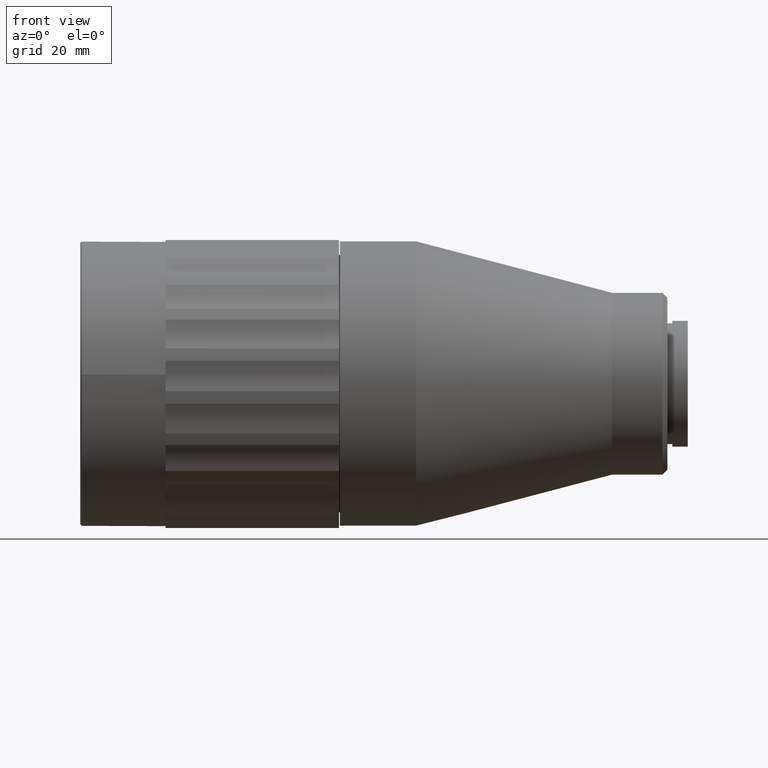
[diagram: clean part render]
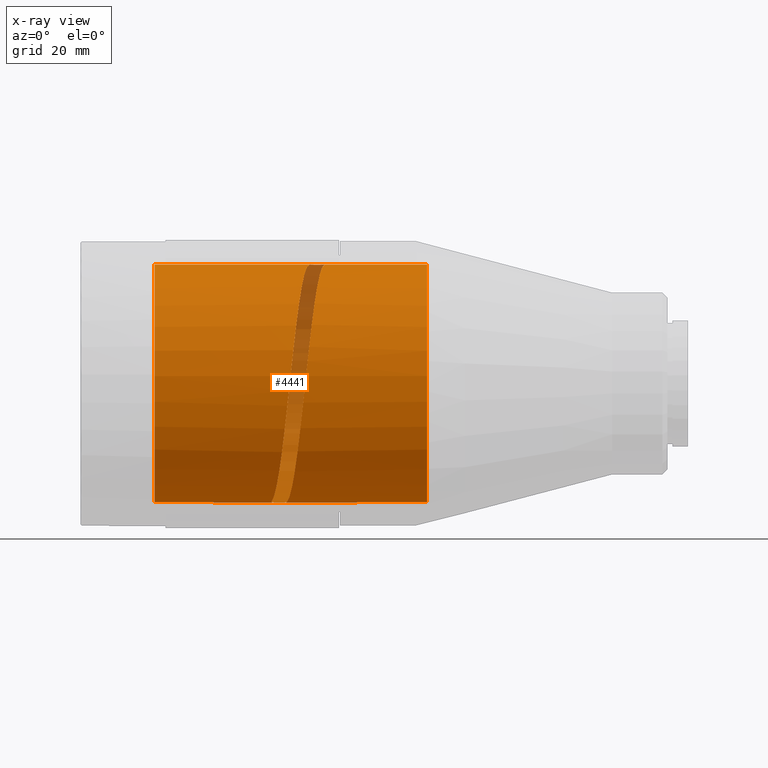
[diagram: x-ray — body ghosted, one internal face saturated and labeled with its STEP entity id]
A machine part, front view, then the same camera in x-ray: the body is ghosted and one INTERNAL B-rep face — a face not visible from any outside direction — is saturated and labeled: STEP entity #4441.
In plain terms, the highlighted cylindrical surface (bore or boss wall) has radius 24.05 mm, axis along (-1, 0, -0).
Its self-contained STEP definition (entity closure, byte-faithful):
#85 = ORIENTED_EDGE ( 'NONE', *, *, #4489, .T. ) ;
#125 = CARTESIAN_POINT ( 'NONE',  ( -12.45117802004431340, 7.643310340197927211, 153.0469465429056868 ) ) ;
#138 = CARTESIAN_POINT ( 'NONE',  ( -21.22889073531764836, 5.681678415940095483, 105.0009269404879433 ) ) ;
#199 = VERTEX_POINT ( 'NONE', #3057 ) ;
#213 = B_SPLINE_CURVE_WITH_KNOTS ( 'NONE', 3,
 ( #354, #3565, #1753, #3215, #3638, #1375, #3988, #4302 ),
 .UNSPECIFIED., .F., .F.,
 ( 4, 2, 2, 4 ),
 ( 7.152448122690996019E-18, 0.0005468489758778457156, 0.001093697951755684275, 0.002187395903511361612 ),
 .UNSPECIFIED. ) ;
#280 = CARTESIAN_POINT ( 'NONE',  ( -23.16925163210535032, 4.064795420791781133, 105.1615056189385626 ) ) ;
#290 = DIRECTION ( 'NONE',  ( 0.000000000000000000, -0.9979688372028781007, 0.06370400279366535135 ) ) ;
#291 = CARTESIAN_POINT ( 'NONE',  ( -15.48542824350433023, 7.437161010694372187, 153.0492510005691713 ) ) ;
#317 = CARTESIAN_POINT ( 'NONE',  ( -21.12179982525748301, -12.42222087995487101, 114.5261092358267376 ) ) ;
#351 = LINE ( 'NONE', #3636, #3083 ) ;
#354 = CARTESIAN_POINT ( 'NONE',  ( -13.99346125450547085, 8.779436293721767370, 153.0011505347292484 ) ) ;
#390 = CIRCLE ( 'NONE', #2210, 24.05000000000000071 ) ;
#399 = CARTESIAN_POINT ( 'NONE',  ( -14.02179982525748869, -7.006644814275500011, 148.3707508511724882 ) ) ;
#417 = CARTESIAN_POINT ( 'NONE',  ( -23.16925163210535032, 4.064795420791781133, 105.1615056189385626 ) ) ;
#419 = AXIS2_PLACEMENT_3D ( 'NONE', #1108, #1083, #3305 ) ;
#427 = LINE ( 'NONE', #4479, #3644 ) ;
#441 = CARTESIAN_POINT ( 'NONE',  ( -13.99346125450547085, 8.779436293721767370, 153.0011505347292484 ) ) ;
#451 = ORIENTED_EDGE ( 'NONE', *, *, #4417, .T. ) ;
#473 = CARTESIAN_POINT ( 'NONE',  ( -12.93417311057738850, 8.438042594549443720, 153.0210080709435942 ) ) ;
#545 = ORIENTED_EDGE ( 'NONE', *, *, #3219, .T. ) ;
#588 = CARTESIAN_POINT ( 'NONE',  ( -22.01068871414637229, -6.285638113139263794, 108.6716004841525773 ) ) ;
#606 = CARTESIAN_POINT ( 'NONE',  ( -12.41879246285407312, 7.121672294526777414, 153.0496715954890874 ) ) ;
#631 = CARTESIAN_POINT ( 'NONE',  ( -18.01068871414637940, -12.77221042300202924, 142.3273965654113908 ) ) ;
#661 = DIRECTION ( 'NONE',  ( 1.000000000000000000, -0.000000000000000000, 0.000000000000000000 ) ) ;
#663 = CARTESIAN_POINT ( 'NONE',  ( -14.91068871414637975, -12.77221042300202924, 142.3273965654113908 ) ) ;
#672 = CARTESIAN_POINT ( 'NONE',  ( -21.56624426970193298, -9.353929496547067401, 111.5988548599896717 ) ) ;
#684 = CARTESIAN_POINT ( 'NONE',  ( -17.13291093636858875, -16.18636250042449731, 122.1263828255375472 ) ) ;
#729 = FACE_OUTER_BOUND ( 'NONE', #1094, .T. ) ;
#751 = EDGE_CURVE ( 'NONE', #1937, #199, #2161, .T. ) ;
#755 = CARTESIAN_POINT ( 'NONE',  ( -14.46624426970192623, -10.42223082591867644, 145.8573860962235642 ) ) ;
#792 = CARTESIAN_POINT ( 'NONE',  ( -21.59458284045394194, 5.715273759346461979, 104.9988494652707800 ) ) ;
#813 = EDGE_LOOP ( 'NONE', ( #4127, #451, #85, #4345, #2190, #545, #3674, #3106 ) ) ;
#899 = CARTESIAN_POINT ( 'NONE',  ( -13.49598468516959571, 8.725023387618263015, 153.0045718200761939 ) ) ;
#952 = CARTESIAN_POINT ( 'NONE',  ( -13.10795893928480638, 8.564470306173394221, 153.0140577940281617 ) ) ;
#1014 = CARTESIAN_POINT ( 'NONE',  ( -21.67791872972753353, 5.715273759346461979, 104.9988494652707800 ) ) ;
#1018 = CARTESIAN_POINT ( 'NONE',  ( -23.13686607491509761, 4.582546131766546793, 105.0978826837004050 ) ) ;
#1040 = CARTESIAN_POINT ( 'NONE',  ( -13.57735538081304050, -3.591058802632328906, 150.8841156061213553 ) ) ;
#1071 = DIRECTION ( 'NONE',  ( -1.000000000000000000, 0.000000000000000000, -0.000000000000000000 ) ) ;
#1083 = DIRECTION ( 'NONE',  ( -1.000000000000000000, 0.000000000000000000, -0.000000000000000000 ) ) ;
#1084 = CARTESIAN_POINT ( 'NONE',  ( -20.10261585145507723, 4.377776982676845563, 105.1218086562191161 ) ) ;
#1094 = EDGE_LOOP ( 'NONE', ( #4566 ) ) ;
#1108 = CARTESIAN_POINT ( 'NONE',  ( -86.60483285829053557, 7.247355026534116895, 129.0000000000000000 ) ) ;
#1109 = CARTESIAN_POINT ( 'NONE',  ( -15.79957760303526193, -16.12312098119554449, 134.6765615624365751 ) ) ;
#1303 = CARTESIAN_POINT ( 'NONE',  ( -12.40765896125409817, 7.226872800097692284, 153.0502213696053673 ) ) ;
#1311 = EDGE_CURVE ( 'NONE', #2617, #3689, #427, .T. ) ;
#1320 = CARTESIAN_POINT ( 'NONE',  ( -18.45513315859081160, -15.12219002008538027, 138.7974070345991606 ) ) ;
#1345 = EDGE_LOOP ( 'NONE', ( #1939 ) ) ;
#1375 = CARTESIAN_POINT ( 'NONE',  ( -15.26963457875718966, 8.149785763549488138, 153.0343158633506846 ) ) ;
#1388 = CARTESIAN_POINT ( 'NONE',  ( -19.34402204747970444, -17.12405194230571226, 130.5557160902739611 ) ) ;
#1437 = CARTESIAN_POINT ( 'NONE',  ( -21.78371103790725982, 5.715273759346458426, 104.9988494652707942 ) ) ;
#1465 = CARTESIAN_POINT ( 'NONE',  ( -19.72733282944897937, 0.8518062597573062833, 105.5455446094201335 ) ) ;
#1563 = CARTESIAN_POINT ( 'NONE',  ( -12.65529294700038676, 8.128068414409273856, 153.0343693397055915 ) ) ;
#1576 = CARTESIAN_POINT ( 'NONE',  ( -20.88519507843930256, 5.550058629107187613, 105.0098762841030293 ) ) ;
#1587 = CARTESIAN_POINT ( 'NONE',  ( 8.205977952520301599, -16.75379550819510754, 130.5320812671876638 ) ) ;
#1610 = CIRCLE ( 'NONE', #2134, 24.05000000000000071 ) ;
#1741 = DIRECTION ( 'NONE',  ( -1.000000000000000000, 0.000000000000000000, -0.000000000000000000 ) ) ;
#1753 = CARTESIAN_POINT ( 'NONE',  ( -14.35915335964176620, 8.745849474206998764, 153.0033615428142468 ) ) ;
#1773 = CARTESIAN_POINT ( 'NONE',  ( -22.48008515567461529, 5.500411373785670577, 105.0133797239188880 ) ) ;
#1819 = CARTESIAN_POINT ( 'NONE',  ( -16.68846649192415299, -16.65520722136509946, 126.3410494579057826 ) ) ;
#1845 = CARTESIAN_POINT ( 'NONE',  ( -22.65387098438204205, 5.374126077750314145, 105.0225610430471193 ) ) ;
#1846 = CARTESIAN_POINT ( 'NONE',  ( -12.77758824598177512, 3.731409362167257271, 153.0319542014752017 ) ) ;
#1937 = VERTEX_POINT ( 'NONE', #606 ) ;
#1939 = ORIENTED_EDGE ( 'NONE', *, *, #2924, .F. ) ;
#1998 = CARTESIAN_POINT ( 'NONE',  ( -23.04014503854572382, 4.879618181762565676, 105.0660075034476080 ) ) ;
#2020 = CARTESIAN_POINT ( 'NONE',  ( -13.70037342394596891, 8.768392309294954501, 153.0018627951039889 ) ) ;
#2029 = EDGE_CURVE ( 'NONE', #2617, #3085, #213, .T. ) ;
#2053 = CARTESIAN_POINT ( 'NONE',  ( -19.78846649192415441, -16.65520722136509946, 126.3410494579057826 ) ) ;
#2079 = CARTESIAN_POINT ( 'NONE',  ( -17.12179982525748656, -7.006644814275500011, 148.3707508511724882 ) ) ;
#2099 = CARTESIAN_POINT ( 'NONE',  ( -46.79402204747971439, 7.247355026534116895, 129.0000000000000000 ) ) ;
#2111 = CARTESIAN_POINT ( 'NONE',  ( -15.35513315859081906, -15.12219002008538027, 138.7974070345991606 ) ) ;
#2121 = CARTESIAN_POINT ( 'NONE',  ( -20.23291093636859728, -16.18636250042449731, 122.1263828255375472 ) ) ;
#2134 = AXIS2_PLACEMENT_3D ( 'NONE', #2099, #1741, #290 ) ;
#2161 =( BOUNDED_CURVE ( )  B_SPLINE_CURVE ( 2, ( #2182, #1846, #3938, #1040, #399, #755, #663, #2111, #1109, #4700, #1819, #684, #4321, #4011, #2500, #3564, #3659, #1465, #1084 ),
 .UNSPECIFIED., .F., .T. ) 
 B_SPLINE_CURVE_WITH_KNOTS ( ( 3, 2, 2, 2, 2, 2, 2, 2, 2, 3 ),
 ( 0.01100449850159282948, 0.05555555555555555247, 0.1111111111111111049, 0.1666666666666666574, 0.2222222222222222099, 0.2777777777777777901, 0.3333333333333333148, 0.3888888888888888951, 0.4444444444444444198, 0.4910845816334876157 ),
 .UNSPECIFIED. ) 
 CURVE ( )  GEOMETRIC_REPRESENTATION_ITEM ( )  RATIONAL_B_SPLINE_CURVE ( ( 0.9951735780578738755, 0.9878170480780417151, 1.000000000000000000, 0.9848077530122079093, 1.000000000000000000, 0.9848077530122079093, 1.000000000000000000, 0.9848077530122079093, 1.000000000000000000, 0.9848077530122079093, 1.000000000000000000, 0.9848077530122079093, 1.000000000000000000, 0.9848077530122079093, 1.000000000000000000, 0.9848077530122079093, 1.000000000000000000, 0.9872457672930319283, 0.9959064644610468031 ) ) 
 REPRESENTATION_ITEM ( '' )  );
#2182 = CARTESIAN_POINT ( 'NONE',  ( -12.41879246285407312, 7.121672294526777414, 153.0496715954890874 ) ) ;
#2190 = ORIENTED_EDGE ( 'NONE', *, *, #751, .F. ) ;
#2201 = CARTESIAN_POINT ( 'NONE',  ( -22.19349296089744783, 5.627952891631354149, 105.0045451632152407 ) ) ;
#2210 = AXIS2_PLACEMENT_3D ( 'NONE', #2914, #1071, #4019 ) ;
#2346 = CARTESIAN_POINT ( 'NONE',  ( -20.72734747378760645, 5.453443746524534674, 105.0166841870632624 ) ) ;
#2401 = VERTEX_POINT ( 'NONE', #1014 ) ;
#2498 = CARTESIAN_POINT ( 'NONE',  ( -21.88767067101344566, 5.704228848963715848, 104.9995472198826718 ) ) ;
#2500 = CARTESIAN_POINT ( 'NONE',  ( -18.46624426970193156, -9.353929496547067401, 111.5988548599896717 ) ) ;
#2567 = FACE_BOUND ( 'NONE', #813, .T. ) ;
#2617 = VERTEX_POINT ( 'NONE', #441 ) ;
#2638 = DIRECTION ( 'NONE',  ( 1.000000000000000000, -0.000000000000000000, 0.000000000000000000 ) ) ;
#2673 = CARTESIAN_POINT ( 'NONE',  ( -15.48542824350433023, 7.437161010694372187, 153.0492510005691713 ) ) ;
#2683 = EDGE_CURVE ( 'NONE', #3945, #199, #4299, .T. ) ;
#2690 = CARTESIAN_POINT ( 'NONE',  ( -12.41879246285407312, 7.121672294526777414, 153.0496715954890874 ) ) ;
#2739 = EDGE_CURVE ( 'NONE', #4702, #4702, #1610, .T. ) ;
#2753 = CARTESIAN_POINT ( 'NONE',  ( -22.45513315859082226, -2.401207380555486104, 106.9702986067332944 ) ) ;
#2898 = FACE_OUTER_BOUND ( 'NONE', #1345, .T. ) ;
#2914 = CARTESIAN_POINT ( 'NONE',  ( 8.205977952520301599, 7.247355026534116895, 129.0000000000000000 ) ) ;
#2924 = EDGE_CURVE ( 'NONE', #4460, #4460, #390, .T. ) ;
#3023 = CARTESIAN_POINT ( 'NONE',  ( -13.39455113406196851, 8.692099953546115643, 153.0066038454958459 ) ) ;
#3039 = CARTESIAN_POINT ( 'NONE',  ( -20.31840951620223379, 5.086516779063662952, 105.0460128929923513 ) ) ;
#3057 = CARTESIAN_POINT ( 'NONE',  ( -20.10261585145507723, 4.377776982676845563, 105.1218086562191161 ) ) ;
#3083 = VECTOR ( 'NONE', #661, 1000.000000000000000 ) ;
#3085 = VERTEX_POINT ( 'NONE', #2673 ) ;
#3093 = CARTESIAN_POINT ( 'NONE',  ( -20.10261585145507723, 4.377776982676845563, 105.1218086562191161 ) ) ;
#3101 = CARTESIAN_POINT ( 'NONE',  ( -12.42918939842945214, 7.539008660221838909, 153.0484556113414669 ) ) ;
#3106 = ORIENTED_EDGE ( 'NONE', *, *, #2029, .T. ) ;
#3123 = CARTESIAN_POINT ( 'NONE',  ( -12.54789905641369430, 7.942024138904600683, 153.0407905322481383 ) ) ;
#3159 = CARTESIAN_POINT ( 'NONE',  ( -15.86071126551043342, 3.885930780761746917, 153.0772786821279396 ) ) ;
#3201 = CARTESIAN_POINT ( 'NONE',  ( -23.16925163210535032, 4.064795420791781133, 105.1615056189385626 ) ) ;
#3215 = CARTESIAN_POINT ( 'NONE',  ( -14.70284901652010667, 8.614160064151660023, 153.0112201887763490 ) ) ;
#3219 = EDGE_CURVE ( 'NONE', #1937, #3689, #4189, .T. ) ;
#3305 = DIRECTION ( 'NONE',  ( 0.000000000000000000, -0.9979688372028781007, 0.06370400279366535135 ) ) ;
#3378 = CARTESIAN_POINT ( 'NONE',  ( -46.79402204747971439, -16.75379550819510754, 130.5320812671876638 ) ) ;
#3476 = CARTESIAN_POINT ( 'NONE',  ( -13.91012536523188103, 8.779436293721767370, 153.0011505347292484 ) ) ;
#3479 = CARTESIAN_POINT ( 'NONE',  ( -23.15885469652996420, 4.478899129066650886, 105.1096477406363618 ) ) ;
#3510 = CARTESIAN_POINT ( 'NONE',  ( -18.89957760303526513, -16.12312098119554449, 134.6765615624365751 ) ) ;
#3535 = CARTESIAN_POINT ( 'NONE',  ( -16.23291093636859728, 0.4781635418856381436, 152.0777067024469034 ) ) ;
#3553 = CARTESIAN_POINT ( 'NONE',  ( -17.56624426970192943, -10.42223082591867644, 145.8573860962235642 ) ) ;
#3564 = CARTESIAN_POINT ( 'NONE',  ( -18.91068871414637442, -6.285638113139263794, 108.6716004841525773 ) ) ;
#3565 = CARTESIAN_POINT ( 'NONE',  ( -14.17836867458820649, 8.779436293721770923, 153.0011505347292768 ) ) ;
#3574 = CARTESIAN_POINT ( 'NONE',  ( -16.67735538081303659, -3.591058802632328906, 150.8841156061213553 ) ) ;
#3636 = CARTESIAN_POINT ( 'NONE',  ( -86.60483285829053557, 5.715273759346461979, 104.9988494652707800 ) ) ;
#3638 = CARTESIAN_POINT ( 'NONE',  ( -14.86069662117181345, 8.517463727050893496, 153.0167520483615249 ) ) ;
#3644 = VECTOR ( 'NONE', #2638, 1000.000000000000000 ) ;
#3659 = CARTESIAN_POINT ( 'NONE',  ( -19.35513315859081729, -2.401207380555486104, 106.9702986067332944 ) ) ;
#3674 = ORIENTED_EDGE ( 'NONE', *, *, #1311, .F. ) ;
#3689 = VERTEX_POINT ( 'NONE', #3781 ) ;
#3753 = CARTESIAN_POINT ( 'NONE',  ( -21.40967542037121163, 5.715273759346461979, 104.9988494652707942 ) ) ;
#3781 = CARTESIAN_POINT ( 'NONE',  ( -13.91012536523188103, 8.779436293721767370, 153.0011505347292484 ) ) ;
#3791 = CARTESIAN_POINT ( 'NONE',  ( -12.40767620892328615, 7.331369789170496531, 153.0500773523156113 ) ) ;
#3853 = EDGE_CURVE ( 'NONE', #4034, #3085, #4613, .T. ) ;
#3876 = CARTESIAN_POINT ( 'NONE',  ( -20.67735538081304369, -14.30429169018968061, 118.3262460306821566 ) ) ;
#3935 = CARTESIAN_POINT ( 'NONE',  ( -23.18036788603613729, 4.272739335038074238, 105.1344402826874926 ) ) ;
#3938 = CARTESIAN_POINT ( 'NONE',  ( -13.13291093636860474, 0.4781635418856381436, 152.0777067024469034 ) ) ;
#3945 = VERTEX_POINT ( 'NONE', #792 ) ;
#3950 = CARTESIAN_POINT ( 'NONE',  ( -22.81045584897763590, 0.7043019711210488643, 105.6101484961825605 ) ) ;
#3988 = CARTESIAN_POINT ( 'NONE',  ( -15.44656508988183674, 7.804915473011814875, 153.0463485402119659 ) ) ;
#4011 = CARTESIAN_POINT ( 'NONE',  ( -18.02179982525748159, -12.42222087995487101, 114.5261092358267376 ) ) ;
#4019 = DIRECTION ( 'NONE',  ( 0.000000000000000000, -0.9979688372028781007, 0.06370400279366535135 ) ) ;
#4034 = VERTEX_POINT ( 'NONE', #417 ) ;
#4127 = ORIENTED_EDGE ( 'NONE', *, *, #3853, .F. ) ;
#4156 = CARTESIAN_POINT ( 'NONE',  ( -13.80433305705214941, 8.779436293721765594, 153.0011505347292484 ) ) ;
#4189 = B_SPLINE_CURVE_WITH_KNOTS ( 'NONE', 3,
 ( #2690, #1303, #3791, #3101, #125, #3123, #1563, #473, #952, #3023, #899, #2020, #4156, #3476 ),
 .UNSPECIFIED., .F., .F.,
 ( 4, 2, 2, 2, 2, 2, 4 ),
 ( 2.602085213965210642E-18, 0.0003128765100130129055, 0.0006257530200260232088, 0.001251506040052039696, 0.001877259060078056291, 0.002190135570091065673, 0.002503012080104074621 ),
 .UNSPECIFIED. ) ;
#4297 = CARTESIAN_POINT ( 'NONE',  ( -23.18038513370531817, 4.169072173635566259, 105.1475841448675084 ) ) ;
#4299 = B_SPLINE_CURVE_WITH_KNOTS ( 'NONE', 3,
 ( #4472, #3753, #138, #1576, #2346, #3039, #4497, #3093 ),
 .UNSPECIFIED., .F., .F.,
 ( 4, 2, 2, 4 ),
 ( 6.992893892674702526E-18, 0.0005468489758778450650, 0.001093697951755683191, 0.002187395903511359443 ),
 .UNSPECIFIED. ) ;
#4302 = CARTESIAN_POINT ( 'NONE',  ( -15.48542824350433023, 7.437161010694372187, 153.0492510005691713 ) ) ;
#4321 = CARTESIAN_POINT ( 'NONE',  ( -17.57735538081304227, -14.30429169018968061, 118.3262460306821566 ) ) ;
#4345 = ORIENTED_EDGE ( 'NONE', *, *, #2683, .T. ) ;
#4363 = CYLINDRICAL_SURFACE ( 'NONE', #419, 24.05000000000000071 ) ;
#4388 = CARTESIAN_POINT ( 'NONE',  ( -21.67791872972753353, 5.715273759346461979, 104.9988494652707800 ) ) ;
#4417 = EDGE_CURVE ( 'NONE', #4034, #2401, #4499, .T. ) ;
#4441 = ADVANCED_FACE ( 'NONE', ( #729, #2898, #2567 ), #4363, .F. ) ;
#4460 = VERTEX_POINT ( 'NONE', #1587 ) ;
#4472 = CARTESIAN_POINT ( 'NONE',  ( -21.59458284045394194, 5.715273759346461979, 104.9988494652707800 ) ) ;
#4479 = CARTESIAN_POINT ( 'NONE',  ( -86.60483285829053557, 8.779436293721767370, 153.0011505347292484 ) ) ;
#4489 = EDGE_CURVE ( 'NONE', #2401, #3945, #351, .T. ) ;
#4497 = CARTESIAN_POINT ( 'NONE',  ( -20.14147900507756361, 4.742915648265115358, 105.0779278663112990 ) ) ;
#4499 = B_SPLINE_CURVE_WITH_KNOTS ( 'NONE', 3,
 ( #280, #4297, #3935, #3479, #1018, #1998, #4561, #1845, #1773, #2201, #4698, #2498, #1437, #4388 ),
 .UNSPECIFIED., .F., .F.,
 ( 4, 2, 2, 2, 2, 2, 4 ),
 ( 0.000000000000000000, 0.0003128765100130073218, 0.0006257530200260146436, 0.001251506040052036009, 0.001877259060078057158, 0.002190135570091067841, 0.002503012080104078524 ),
 .UNSPECIFIED. ) ;
#4561 = CARTESIAN_POINT ( 'NONE',  ( -22.93275114795903846, 5.064968897138014015, 105.0487211946588815 ) ) ;
#4566 = ORIENTED_EDGE ( 'NONE', *, *, #2739, .T. ) ;
#4613 =( BOUNDED_CURVE ( )  B_SPLINE_CURVE ( 2, ( #3201, #3950, #2753, #588, #672, #317, #3876, #2121, #2053, #1388, #3510, #1320, #631, #3553, #2079, #3574, #3535, #3159, #291 ),
 .UNSPECIFIED., .F., .T. ) 
 B_SPLINE_CURVE_WITH_KNOTS ( ( 3, 2, 2, 2, 2, 2, 2, 2, 2, 3 ),
 ( 0.01100449850159281040, 0.05555555555555558023, 0.1111111111111111049, 0.1666666666666666852, 0.2222222222222222099, 0.2777777777777777901, 0.3333333333333333703, 0.3888888888888888951, 0.4444444444444444198, 0.4910845816334875602 ),
 .UNSPECIFIED. ) 
 CURVE ( )  GEOMETRIC_REPRESENTATION_ITEM ( )  RATIONAL_B_SPLINE_CURVE ( ( 0.9951735780578738755, 0.9878170480780414930, 1.000000000000000000, 0.9848077530122079093, 1.000000000000000000, 0.9848077530122079093, 1.000000000000000000, 0.9848077530122079093, 1.000000000000000000, 0.9848077530122079093, 1.000000000000000000, 0.9848077530122079093, 1.000000000000000000, 0.9848077530122079093, 1.000000000000000000, 0.9848077530122079093, 1.000000000000000000, 0.9872457672930319283, 0.9959064644610468031 ) ) 
 REPRESENTATION_ITEM ( '' )  );
#4698 = CARTESIAN_POINT ( 'NONE',  ( -22.09205940978981886, 5.660867476390515129, 105.0023745069687209 ) ) ;
#4700 = CARTESIAN_POINT ( 'NONE',  ( -16.24402204747970302, -17.12405194230571226, 130.5557160902739611 ) ) ;
#4702 = VERTEX_POINT ( 'NONE', #3378 ) ;